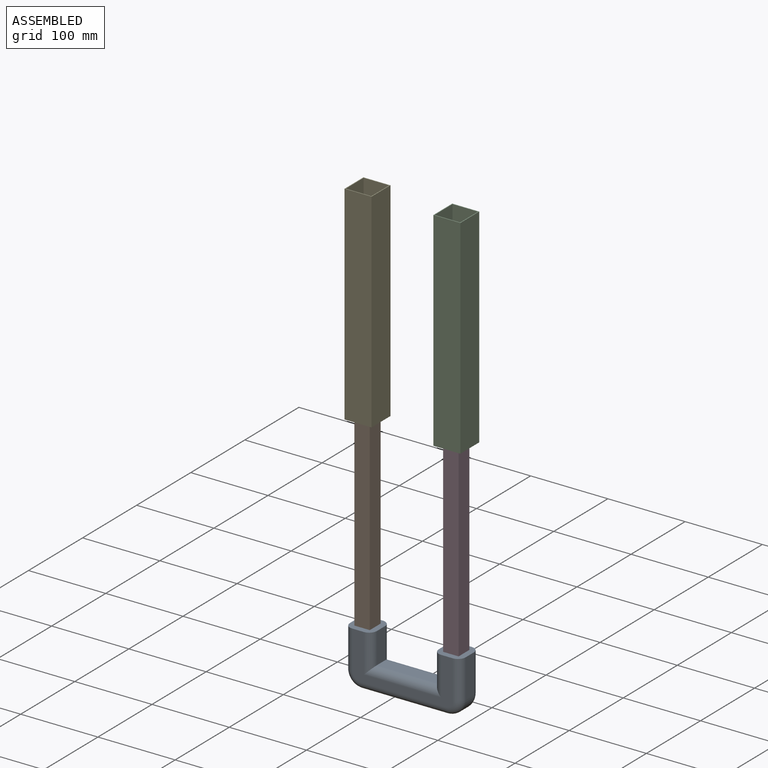
[diagram: assembled view]
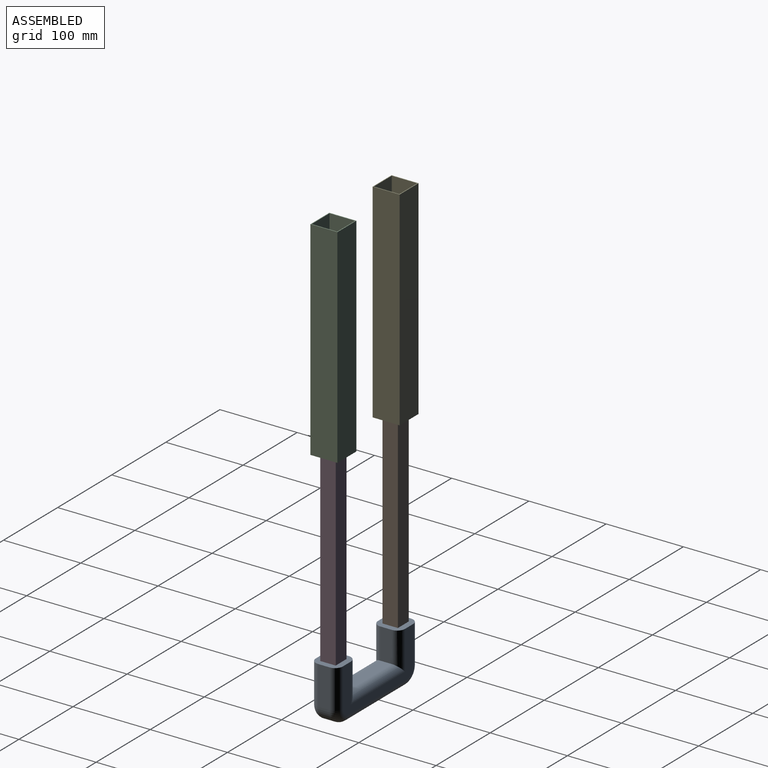
[diagram: assembled view, second angle]
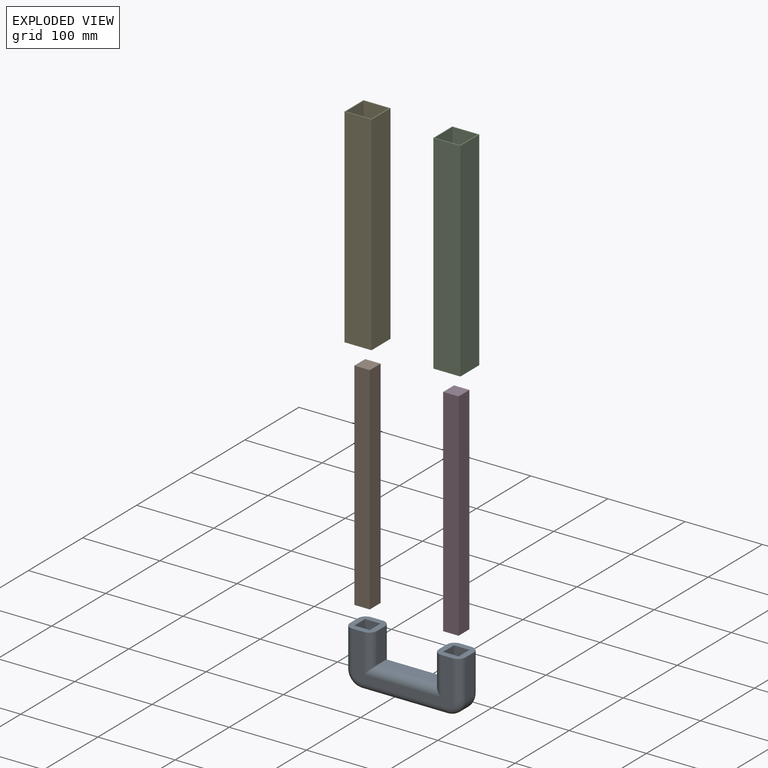
[diagram: exploded view]
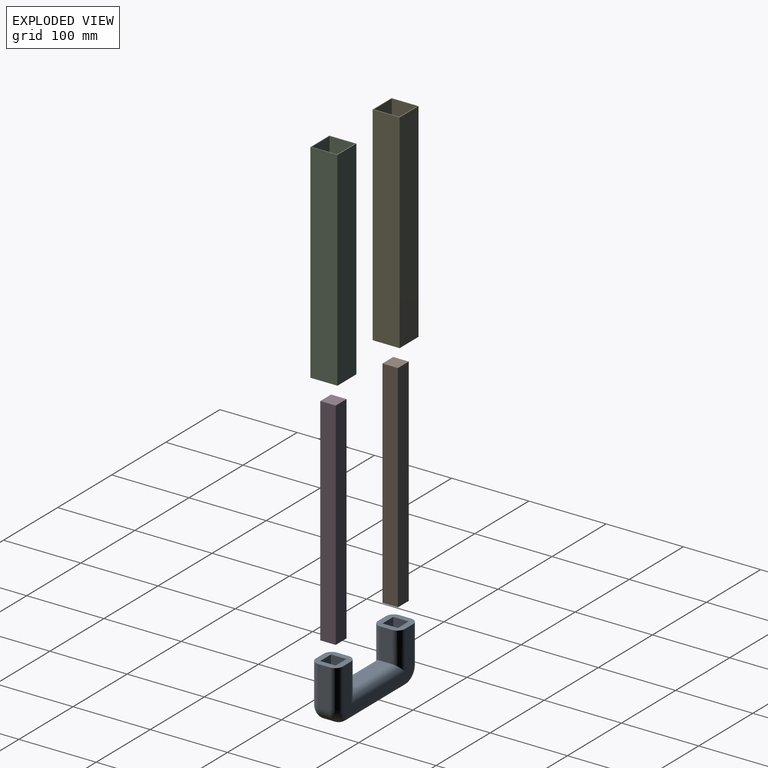
[diagram: exploded view, second angle]
ASSEMBLY  parts=5 mates=4
PART A: 38 faces, bbox 153.3x35x71.6 mm
  f0: plane 130x60mm, normal (0,1,0), area 2757.1mm2, adj f11,f17,f21,f22,f23,f24,f25,f26
  f1: plane 130x60mm, normal (0,-1,0), area 2757.1mm2, adj f11,f17,f18,f19,f20,f27,f28,f29
  f2: plane 80x15mm, normal (0,0,-1), area 1200mm2, adj f9,f12,f19,f22
  f3: plane 50x15mm, normal (-1,0,0), area 750mm2, adj f11,f26,f29,f31
  f4: plane 50x15mm, normal (1,0,0), area 750mm2, adj f17,f24,f27,f34
  f5: plane 110x15mm, normal (0,0,1), area 1650mm2, adj f25,f28,f31,f34
  f6: plane 20x18mm, normal (1,0,0), area 360mm2, adj f7,f10,f11,f36
  f7: plane 20x18mm, normal (0,1,0), area 360mm2, adj f6,f8,f11,f36
  f8: plane 20x18mm, normal (-1,0,0), area 360mm2, adj f7,f10,f11,f36
  f9: plane 40x15mm, normal (1,0,0), area 600mm2, adj f2,f11,f18,f21
  f10: plane 20x18mm, normal (0,-1,0), area 360mm2, adj f6,f8,f11,f36
  f11: plane 35x35mm, normal (0,0,-1), area 739.2mm2, adj f0,f1,f3,f6,f7,f8,f9,f10
  f12: plane 40x15mm, normal (-1,0,0), area 600mm2, adj f2,f17,f20,f23
  f13: plane 20x18mm, normal (1,0,0), area 360mm2, adj f14,f16,f17,f37
  f14: plane 20x18mm, normal (0,1,0), area 360mm2, adj f13,f15,f17,f37
  f15: plane 20x18mm, normal (-1,0,0), area 360mm2, adj f14,f16,f17,f37
  f16: plane 20x18mm, normal (0,-1,0), area 360mm2, adj f13,f15,f17,f37
  f17: plane 35x35mm, normal (0,0,-1), area 739.2mm2, adj f0,f1,f4,f12,f13,f14,f15,f16
  f18: cylinder r=10mm len=50mm, axis (0,0,-1), area 685.4mm2, adj f1,f9,f11,f19
  f19: cylinder r=10mm len=100mm, axis (1,0,0), area 1370.8mm2, adj f1,f2,f18,f20
  f20: cylinder r=10mm len=50mm, axis (0,0,1), area 685.4mm2, adj f1,f12,f17,f19
  f21: cylinder r=10mm len=50mm, axis (0,0,1), area 685.4mm2, adj f0,f9,f11,f22
  f22: cylinder r=10mm len=100mm, axis (-1,0,0), area 1370.8mm2, adj f0,f2,f21,f23
  f23: cylinder r=10mm len=50mm, axis (0,0,-1), area 685.4mm2, adj f0,f12,f17,f22
  f24: cylinder r=10mm len=50mm, axis (0,0,-1), area 785.4mm2, adj f0,f4,f17,f33
  f25: cylinder r=10mm len=110mm, axis (1,0,0), area 1727.9mm2, adj f0,f5,f30,f33
  f26: cylinder r=10mm len=50mm, axis (0,0,1), area 785.4mm2, adj f0,f3,f11,f30
  f27: cylinder r=10mm len=50mm, axis (0,0,1), area 785.4mm2, adj f1,f4,f17,f35
  f28: cylinder r=10mm len=110mm, axis (-1,0,0), area 1727.9mm2, adj f1,f5,f32,f35
  f29: cylinder r=10mm len=50mm, axis (0,0,-1), area 785.4mm2, adj f1,f3,f11,f32
  f30: torus R=10mm, axis (0,1,0), area 403.8mm2, adj f0,f25,f26,f31
  f31: cylinder r=20mm len=20mm, axis (0,1,0), area 471.2mm2, adj f3,f5,f30,f32
  f32: torus R=10mm, axis (0,1,0), area 403.8mm2, adj f1,f28,f29,f31
  f33: torus R=10mm, axis (0,1,0), area 403.8mm2, adj f0,f24,f25,f34
  f34: cylinder r=20mm len=20mm, axis (0,-1,0), area 471.2mm2, adj f4,f5,f33,f35
  f35: torus R=10mm, axis (0,1,0), area 403.8mm2, adj f1,f27,f28,f34
  f36: plane 20x20mm, normal (0,0,-1), area 400mm2, adj f6,f7,f8,f10
  f37: plane 20x20mm, normal (0,0,-1), area 400mm2, adj f13,f14,f15,f16
PART B: 12 faces, bbox 20x280x20 mm
  f0: plane 280x20mm, normal (0,0,-1), area 5600mm2, adj f1,f3,f4,f5
  f1: plane 280x20mm, normal (1,0,0), area 5600mm2, adj f0,f2,f4,f5
  f2: plane 280x20mm, normal (0,0,1), area 5600mm2, adj f1,f3,f4,f5
  f3: plane 280x20mm, normal (-1,0,0), area 5600mm2, adj f0,f2,f4,f5
  f4: plane 20x20mm, normal (0,-1,0), area 400mm2, adj f0,f1,f2,f3
  f5: plane 20x20mm, normal (0,1,0), area 400mm2, adj f0,f1,f2,f3
  f6: plane 275x15mm, normal (0,0,1), area 4125mm2, adj f7,f9,f10,f11
  f7: plane 275x15mm, normal (-1,0,0), area 4125mm2, adj f6,f8,f10,f11
  f8: plane 275x15mm, normal (0,0,-1), area 4125mm2, adj f7,f9,f10,f11
  f9: plane 275x15mm, normal (1,0,0), area 4125mm2, adj f6,f8,f10,f11
  f10: plane 15x15mm, normal (0,1,0), area 225mm2, adj f6,f7,f8,f9
  f11: plane 15x15mm, normal (0,-1,0), area 225mm2, adj f6,f7,f8,f9
PART C: 16 faces, bbox 35x35x270 mm
  f0: plane 35x35mm, normal (0,0,-1), area 136mm2, adj f5,f6,f7,f8,f11,f12,f13,f14
  f1: plane 30x20mm, normal (1,0,0), area 600mm2, adj f2,f4,f9,f10
  f2: plane 30x20mm, normal (0,1,0), area 600mm2, adj f1,f3,f9,f10
  f3: plane 30x20mm, normal (-1,0,0), area 600mm2, adj f2,f4,f9,f10
  f4: plane 30x20mm, normal (0,-1,0), area 600mm2, adj f1,f3,f9,f10
  f5: plane 270x35mm, normal (0,1,0), area 9450mm2, adj f0,f6,f8,f9
  f6: plane 270x35mm, normal (-1,0,0), area 9450mm2, adj f0,f5,f7,f9
  f7: plane 270x35mm, normal (0,-1,0), area 9450mm2, adj f0,f6,f8,f9
  f8: plane 270x35mm, normal (1,0,0), area 9450mm2, adj f0,f5,f7,f9
  f9: plane 35x35mm, normal (0,0,1), area 325mm2, adj f1,f2,f3,f4,f5,f6,f7,f8
  f10: plane 30x30mm, normal (0,0,1), area 900mm2, adj f1,f2,f3,f4
  f11: plane 220x33mm, normal (0,1,0), area 7260mm2, adj f0,f12,f14,f15
  f12: plane 220x33mm, normal (1,0,0), area 7260mm2, adj f0,f11,f13,f15
  f13: plane 220x33mm, normal (0,-1,0), area 7260mm2, adj f0,f12,f14,f15
  f14: plane 220x33mm, normal (-1,0,0), area 7260mm2, adj f0,f11,f13,f15
  f15: plane 33x33mm, normal (0,0,-1), area 1089mm2, adj f11,f12,f13,f14
PART D: same geometry as B
PART E: same geometry as C
PLACE A rot(axis=(1,0,0),180deg) t=(-76.11,-62.2,-51.99)mm
PLACE B rot(axis=(-1,0,0),90deg) t=(-130.47,-43.72,-29.99)mm
PLACE C rot(axis=(1,0,0),180deg) t=(-36.94,-61.8,500.01)mm
PLACE D rot(axis=(1,0,0),90deg) t=(-15.47,-43.72,250.01)mm
PLACE E rot(axis=(1,0,0),180deg) t=(-151.94,-61.8,500.01)mm
MATE fastened B.f4 <-> E.f10  axis (0,0,1) through (-130.47,-43.72,250.01)mm
MATE fastened A.f36 <-> B.f5  axis (0,0,1) through (-130.47,-43.72,-29.99)mm
MATE fastened C.f10 <-> D.f5  axis (0,0,-1) through (-15.47,-43.72,250.01)mm
MATE fastened A.f37 <-> D.f4  axis (0,0,1) through (-15.47,-43.72,-29.99)mm
